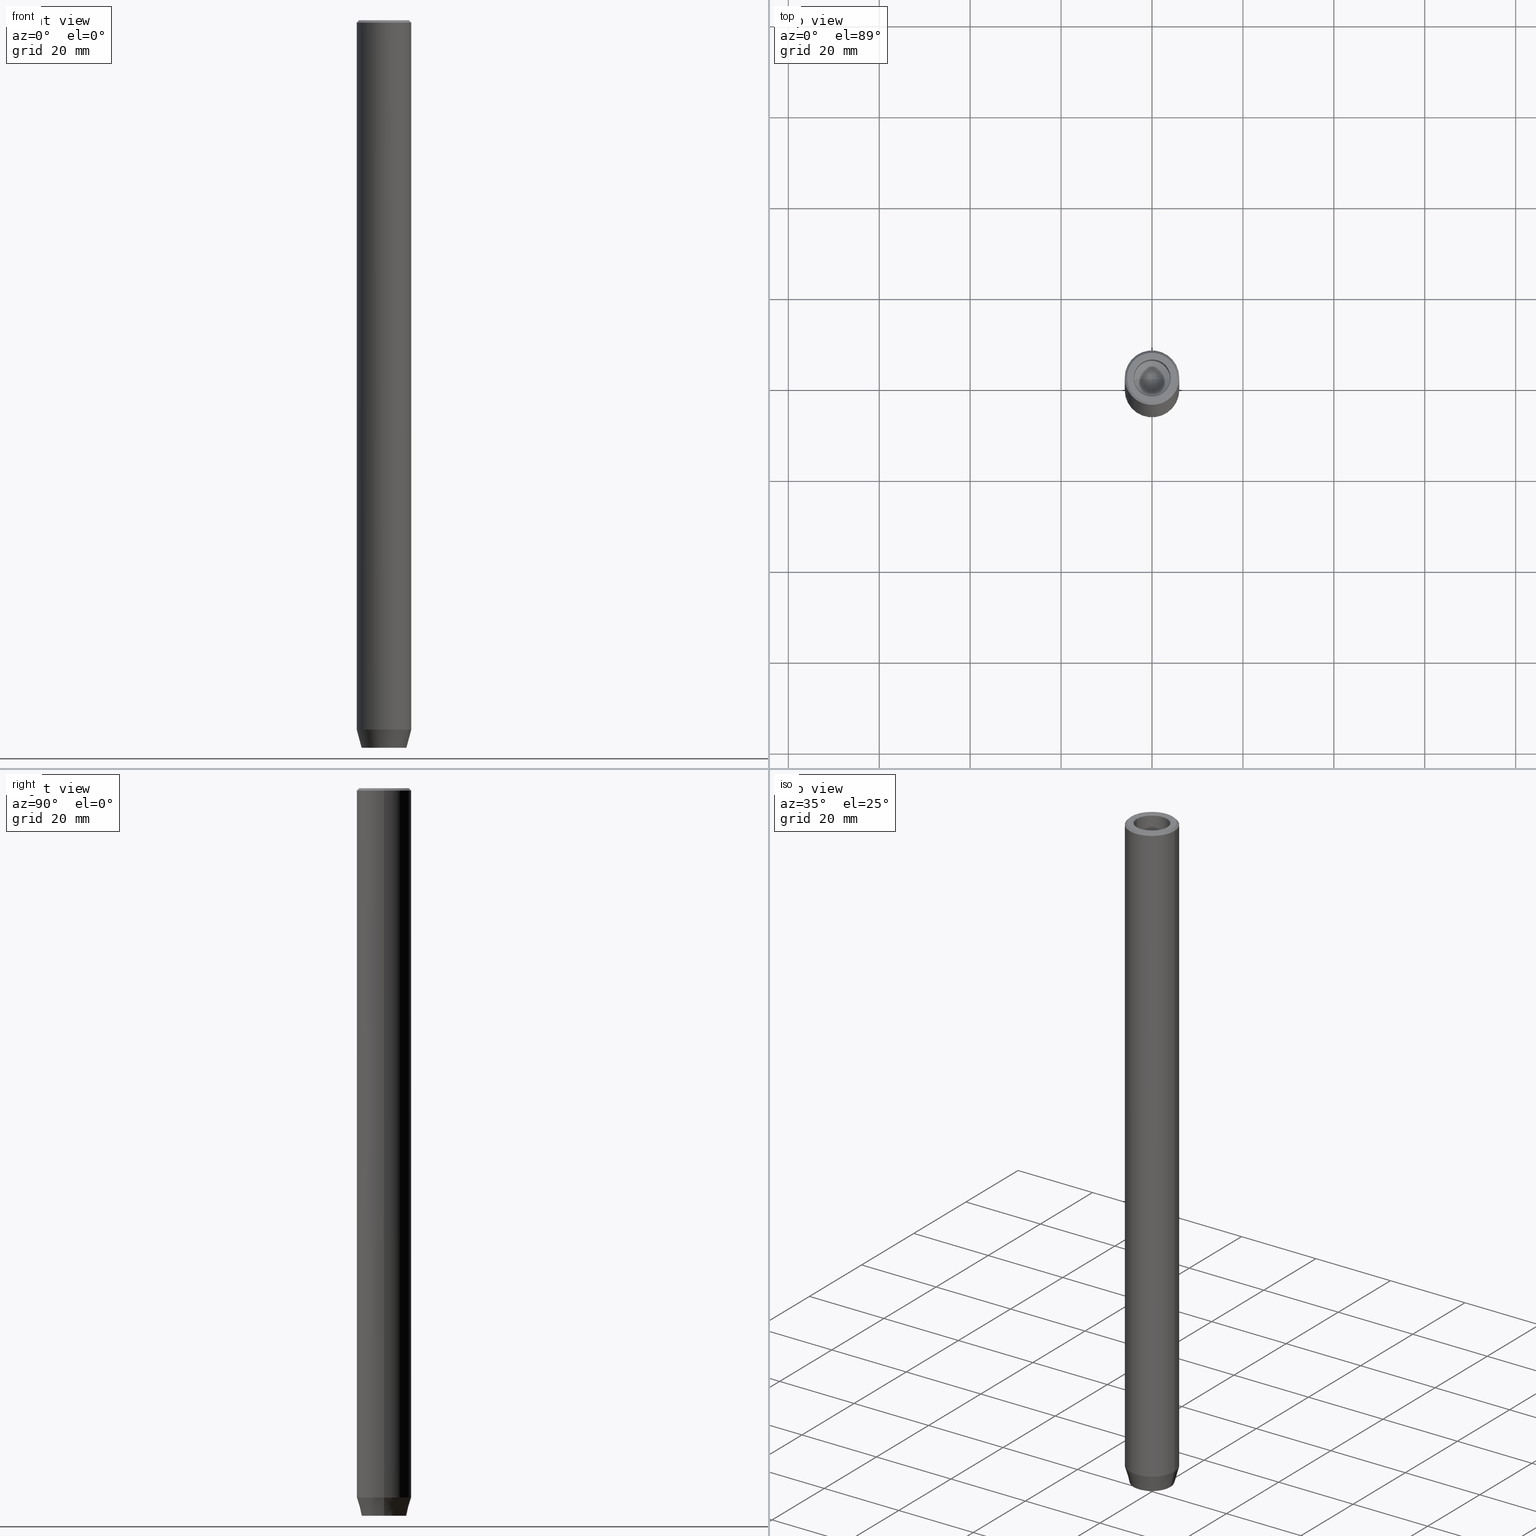
[diagram: canonical four-view strip — front | top / right | iso, engineering-drawing reading convention]
A machine part, canonical four-view strip (front | top / right | iso — engineering-drawing reading convention). The complete STEP part file that produces these views, byte-faithful:
ISO-10303-21;
HEADER;
FILE_DESCRIPTION (( 'STEP AP203' ),
    '1' );
FILE_NAME ('9457.STEP',
    '2024-01-02T19:11:18',
    ( '' ),
    ( '' ),
    'SwSTEP 2.0',
    'SolidWorks 2019',
    '' );
FILE_SCHEMA (( 'CONFIG_CONTROL_DESIGN' ));
ENDSEC;

DATA;
#1 = ORIENTED_EDGE ( 'NONE', *, *, #570, .T. ) ;
#2 = EDGE_CURVE ( 'NONE', #426, #638, #196, .T. ) ;
#3 = DIRECTION ( 'NONE',  ( -0.000000000000000000, -0.000000000000000000, 1.000000000000000000 ) ) ;
#4 = LINE ( 'NONE', #199, #403 ) ;
#5 = VECTOR ( 'NONE', #436, 1000.000000000000000 ) ;
#6 = DIRECTION ( 'NONE',  ( 0.8660254037844385966, 0.4999999999999998890, 0.000000000000000000 ) ) ;
#7 = CARTESIAN_POINT ( 'NONE',  ( 0.000000000000000000, 0.000000000000000000, -0.2999999999999999889 ) ) ;
#8 = EDGE_CURVE ( 'NONE', #488, #52, #585, .T. ) ;
#9 = DIRECTION ( 'NONE',  ( -0.000000000000000000, -0.000000000000000000, 1.000000000000000000 ) ) ;
#10 = CYLINDRICAL_SURFACE ( 'NONE', #380, 3.999999999999996447 ) ;
#11 = DIRECTION ( 'NONE',  ( -1.000000000000000000, 0.000000000000000000, -0.000000000000000000 ) ) ;
#12 = CIRCLE ( 'NONE', #235, 3.999999999999996447 ) ;
#13 = CIRCLE ( 'NONE', #596, 6.000000000000000000 ) ;
#14 = DIRECTION ( 'NONE',  ( 0.000000000000000000, -1.000000000000000000, 0.000000000000000000 ) ) ;
#15 = APPROVAL_STATUS ( 'not_yet_approved' ) ;
#16 = CARTESIAN_POINT ( 'NONE',  ( 1.249999999999999778, -2.165063509461096380, -160.0000000000000284 ) ) ;
#17 = ORIENTED_EDGE ( 'NONE', *, *, #174, .F. ) ;
#18 = ADVANCED_FACE ( 'NONE', ( #140 ), #588, .T. ) ;
#19 = PERSON_AND_ORGANIZATION ( #432, #216 ) ;
#20 = DIRECTION ( 'NONE',  ( 1.000000000000000000, 0.000000000000000000, 0.000000000000000000 ) ) ;
#21 = VERTEX_POINT ( 'NONE', #237 ) ;
#22 = PRODUCT_RELATED_PRODUCT_CATEGORY ( 'detail', '', ( #84 ) ) ;
#23 = DIRECTION ( 'NONE',  ( 1.000000000000000000, 0.000000000000000000, 0.000000000000000000 ) ) ;
#24 = DIRECTION ( 'NONE',  ( -0.8660254037844385966, -0.4999999999999999445, 0.000000000000000000 ) ) ;
#25 = AXIS2_PLACEMENT_3D ( 'NONE', #57, #105, #459 ) ;
#26 = VERTEX_POINT ( 'NONE', #276 ) ;
#27 = PERSON_AND_ORGANIZATION_ROLE ( 'design_owner' ) ;
#28 = ADVANCED_FACE ( 'NONE', ( #482 ), #130, .T. ) ;
#29 = LINE ( 'NONE', #221, #159 ) ;
#30 = EDGE_LOOP ( 'NONE', ( #166, #340, #333 ) ) ;
#31 = DIRECTION ( 'NONE',  ( 0.5000000000000001110, -0.8660254037844387076, 0.000000000000000000 ) ) ;
#32 = CC_DESIGN_PERSON_AND_ORGANIZATION_ASSIGNMENT ( #83, #27, ( #84 ) ) ;
#33 = EDGE_LOOP ( 'NONE', ( #186, #331, #387, #142 ) ) ;
#34 = VECTOR ( 'NONE', #93, 1000.000000000000000 ) ;
#35 = DIRECTION ( 'NONE',  ( 1.000000000000000000, 0.000000000000000000, 0.000000000000000000 ) ) ;
#36 = CIRCLE ( 'NONE', #357, 5.500000000000017764 ) ;
#37 = EDGE_LOOP ( 'NONE', ( #336, #136, #342, #81 ) ) ;
#38 = CIRCLE ( 'NONE', #438, 4.928203230275505220 ) ;
#39 = VECTOR ( 'NONE', #233, 1000.000000000000000 ) ;
#40 = LINE ( 'NONE', #582, #280 ) ;
#41 = ORIENTED_EDGE ( 'NONE', *, *, #125, .F. ) ;
#42 = ADVANCED_FACE ( 'NONE', ( #61 ), #100, .T. ) ;
#43 = DIRECTION ( 'NONE',  ( -0.000000000000000000, -0.000000000000000000, 1.000000000000000000 ) ) ;
#44 = EDGE_LOOP ( 'NONE', ( #322, #179, #289, #178 ) ) ;
#45 = LINE ( 'NONE', #391, #153 ) ;
#46 = ORIENTED_EDGE ( 'NONE', *, *, #184, .T. ) ;
#47 = CLOSED_SHELL ( 'NONE', ( #70, #292, #190, #18, #42, #407, #552, #138, #622, #303, #28, #201, #605, #82, #250, #225, #91, #243, #385, #633, #76 ) ) ;
#48 = AXIS2_PLACEMENT_3D ( 'NONE', #586, #388, #144 ) ;
#49 = DIRECTION ( 'NONE',  ( -0.000000000000000000, -0.000000000000000000, -1.000000000000000000 ) ) ;
#50 = EDGE_CURVE ( 'NONE', #521, #271, #38, .T. ) ;
#51 = ORIENTED_EDGE ( 'NONE', *, *, #50, .T. ) ;
#52 = VERTEX_POINT ( 'NONE', #607 ) ;
#53 = CARTESIAN_POINT ( 'NONE',  ( -1.250000000000000000, 2.165063509461097269, -154.2000000000000455 ) ) ;
#54 = ORIENTED_EDGE ( 'NONE', *, *, #503, .T. ) ;
#55 = LINE ( 'NONE', #358, #369 ) ;
#56 = DIRECTION ( 'NONE',  ( 1.000000000000000000, 0.000000000000000000, 0.000000000000000000 ) ) ;
#57 = CARTESIAN_POINT ( 'NONE',  ( 0.000000000000000000, 0.000000000000000000, -160.0000000000000000 ) ) ;
#58 = DIRECTION ( 'NONE',  ( 0.000000000000000000, -1.000000000000000000, 0.000000000000000000 ) ) ;
#59 = EDGE_CURVE ( 'NONE', #271, #521, #463, .T. ) ;
#60 = CYLINDRICAL_SURFACE ( 'NONE', #180, 6.000000000000000000 ) ;
#61 = FACE_OUTER_BOUND ( 'NONE', #145, .T. ) ;
#62 = FACE_OUTER_BOUND ( 'NONE', #86, .T. ) ;
#63 = DIRECTION ( 'NONE',  ( 1.224646799147353207E-16, 1.000000000000000000, 0.000000000000000000 ) ) ;
#64 = VECTOR ( 'NONE', #241, 1000.000000000000000 ) ;
#65 = LOCAL_TIME ( 20, 11, 18.00000000000000000, #470 ) ;
#66 = AXIS2_PLACEMENT_3D ( 'NONE', #608, #305, #11 ) ;
#67 = APPROVAL_DATE_TIME ( #163, #457 ) ;
#68 = CIRCLE ( 'NONE', #515, 6.000000000000000000 ) ;
#69 = CARTESIAN_POINT ( 'NONE',  ( 0.000000000000000000, 0.000000000000000000, -156.0000000000000000 ) ) ;
#70 = ADVANCED_FACE ( 'NONE', ( #245 ), #256, .T. ) ;
#71 = DATE_TIME_ROLE ( 'creation_date' ) ;
#72 = CARTESIAN_POINT ( 'NONE',  ( 4.299999999999996270, 0.000000000000000000, 0.000000000000000000 ) ) ;
#73 = EDGE_LOOP ( 'NONE', ( #75, #368, #449, #448 ) ) ;
#74 = CARTESIAN_POINT ( 'NONE',  ( 0.000000000000000000, 0.000000000000000000, -0.4999999999999891753 ) ) ;
#75 = ORIENTED_EDGE ( 'NONE', *, *, #2, .T. ) ;
#76 = ADVANCED_FACE ( 'NONE', ( #206 ), #161, .T. ) ;
#77 = DATE_AND_TIME ( #616, #255 ) ;
#78 = APPROVAL_PERSON_ORGANIZATION ( #265, #457, #519 ) ;
#79 = CARTESIAN_POINT ( 'NONE',  ( -2.500000000000000444, -1.443375672974064106, -154.2000000000000455 ) ) ;
#80 = AXIS2_PLACEMENT_3D ( 'NONE', #74, #85, #414 ) ;
#81 = ORIENTED_EDGE ( 'NONE', *, *, #454, .F. ) ;
#82 = ADVANCED_FACE ( 'NONE', ( #509 ), #428, .T. ) ;
#83 = PERSON_AND_ORGANIZATION ( #432, #216 ) ;
#84 = PRODUCT ( '9457', '9457', '', ( #514 ) ) ;
#85 = DIRECTION ( 'NONE',  ( 0.000000000000000000, 0.000000000000000000, -1.000000000000000000 ) ) ;
#86 = EDGE_LOOP ( 'NONE', ( #284, #54, #122, #46 ) ) ;
#87 = PLANE ( 'NONE',  #120 ) ;
#88 = ORIENTED_EDGE ( 'NONE', *, *, #208, .F. ) ;
#89 = CARTESIAN_POINT ( 'NONE',  ( 2.499999999999999556, 0.000000000000000000, -154.2000000000000455 ) ) ;
#90 = ORIENTED_EDGE ( 'NONE', *, *, #272, .F. ) ;
#91 = ADVANCED_FACE ( 'NONE', ( #550 ), #207, .F. ) ;
#92 = VECTOR ( 'NONE', #95, 1000.000000000000000 ) ;
#93 = DIRECTION ( 'NONE',  ( -0.000000000000000000, -0.000000000000000000, -1.000000000000000000 ) ) ;
#94 = VERTEX_POINT ( 'NONE', #410 ) ;
#95 = DIRECTION ( 'NONE',  ( -0.7071067811865426878, 0.000000000000000000, -0.7071067811865524577 ) ) ;
#96 = DIRECTION ( 'NONE',  ( -0.8660254037844387076, 0.4999999999999997780, 0.000000000000000000 ) ) ;
#97 = EDGE_CURVE ( 'NONE', #299, #494, #451, .T. ) ;
#98 = CARTESIAN_POINT ( 'NONE',  ( -6.000000000000000000, 7.347880794884119736E-16, -0.4999999999999891753 ) ) ;
#99 = ORIENTED_EDGE ( 'NONE', *, *, #2, .F. ) ;
#100 = CONICAL_SURFACE ( 'NONE', #109, 6.000000000000000000, 0.2617993877991501850 ) ;
#101 = CONICAL_SURFACE ( 'NONE', #453, 3.999999999999995559, 1.029744258676653645 ) ;
#102 = DIRECTION ( 'NONE',  ( -0.000000000000000000, -0.000000000000000000, 1.000000000000000000 ) ) ;
#103 = PLANE ( 'NONE',  #257 ) ;
#104 = CARTESIAN_POINT ( 'NONE',  ( 6.000000000000000000, 0.000000000000000000, -156.0000000000000000 ) ) ;
#105 = DIRECTION ( 'NONE',  ( -0.000000000000000000, -0.000000000000000000, 1.000000000000000000 ) ) ;
#106 = CARTESIAN_POINT ( 'NONE',  ( 0.000000000000000000, 0.000000000000000000, 0.000000000000000000 ) ) ;
#107 = EDGE_CURVE ( 'NONE', #494, #194, #537, .T. ) ;
#108 = ORIENTED_EDGE ( 'NONE', *, *, #591, .F. ) ;
#109 = AXIS2_PLACEMENT_3D ( 'NONE', #352, #560, #113 ) ;
#110 = CARTESIAN_POINT ( 'NONE',  ( 0.000000000000000000, 0.000000000000000000, -0.2999999999999999889 ) ) ;
#111 = CARTESIAN_POINT ( 'NONE',  ( 0.000000000000000000, 0.000000000000000000, -0.2999999999999999889 ) ) ;
#112 = DIRECTION ( 'NONE',  ( 1.000000000000000000, 0.000000000000000000, 0.000000000000000000 ) ) ;
#113 = DIRECTION ( 'NONE',  ( 1.000000000000000000, 0.000000000000000000, 0.000000000000000000 ) ) ;
#114 = EDGE_CURVE ( 'NONE', #222, #389, #553, .T. ) ;
#115 = APPLICATION_PROTOCOL_DEFINITION ( 'international standard', 'config_control_design', 1994, #577 ) ;
#116 = CARTESIAN_POINT ( 'NONE',  ( 0.000000000000000000, 2.886751345948129543, -154.2000000000000455 ) ) ;
#117 = VECTOR ( 'NONE', #239, 1000.000000000000000 ) ;
#118 = SECURITY_CLASSIFICATION ( '', '', #528 ) ;
#119 = APPROVAL_ROLE ( '' ) ;
#120 = AXIS2_PLACEMENT_3D ( 'NONE', #533, #542, #147 ) ;
#121 = CARTESIAN_POINT ( 'NONE',  ( -2.500000000000000000, 7.511572993685795156E-16, -154.2000000000000455 ) ) ;
#122 = ORIENTED_EDGE ( 'NONE', *, *, #464, .T. ) ;
#123 = FACE_OUTER_BOUND ( 'NONE', #30, .T. ) ;
#124 = ORIENTED_EDGE ( 'NONE', *, *, #217, .T. ) ;
#125 = EDGE_CURVE ( 'NONE', #299, #240, #192, .T. ) ;
#126 = LINE ( 'NONE', #16, #628 ) ;
#127 = ORIENTED_EDGE ( 'NONE', *, *, #412, .T. ) ;
#128 = DATE_AND_TIME ( #576, #311 ) ;
#129 = APPROVAL_PERSON_ORGANIZATION ( #261, #516, #119 ) ;
#130 = CONICAL_SURFACE ( 'NONE', #302, 5.500000000000017764, 0.7853981633974415066 ) ;
#131 = FACE_OUTER_BOUND ( 'NONE', #593, .T. ) ;
#132 = AXIS2_PLACEMENT_3D ( 'NONE', #317, #364, #562 ) ;
#133 = EDGE_LOOP ( 'NONE', ( #339, #497, #17, #88, #583, #99 ) ) ;
#134 = ADVANCED_BREP_SHAPE_REPRESENTATION ( '9457', ( #143, #625 ), #546 ) ;
#135 = LINE ( 'NONE', #335, #34 ) ;
#136 = ORIENTED_EDGE ( 'NONE', *, *, #97, .F. ) ;
#137 = ORIENTED_EDGE ( 'NONE', *, *, #285, .F. ) ;
#138 = ADVANCED_FACE ( 'NONE', ( #210, #355 ), #103, .T. ) ;
#139 = DIRECTION ( 'NONE',  ( -0.8571673007021118895, 1.049727191138618079E-16, 0.5150380749100549327 ) ) ;
#140 = FACE_OUTER_BOUND ( 'NONE', #375, .T. ) ;
#141 = LINE ( 'NONE', #189, #429 ) ;
#142 = ORIENTED_EDGE ( 'NONE', *, *, #591, .T. ) ;
#143 = MANIFOLD_SOLID_BREP ( 'Odebrat vysunut�m1', #47 ) ;
#144 = DIRECTION ( 'NONE',  ( 1.000000000000000000, 0.000000000000000000, 0.000000000000000000 ) ) ;
#145 = EDGE_LOOP ( 'NONE', ( #442, #472, #137, #595 ) ) ;
#146 = EDGE_CURVE ( 'NONE', #638, #267, #301, .T. ) ;
#147 = DIRECTION ( 'NONE',  ( -0.000000000000000000, 0.000000000000000000, -1.000000000000000000 ) ) ;
#148 = ORIENTED_EDGE ( 'NONE', *, *, #524, .T. ) ;
#149 =( LENGTH_UNIT ( ) NAMED_UNIT ( * ) SI_UNIT ( .MILLI., .METRE. ) );
#150 = VECTOR ( 'NONE', #549, 999.9999999999998863 ) ;
#151 = CARTESIAN_POINT ( 'NONE',  ( 0.000000000000000000, 0.000000000000000000, 0.000000000000000000 ) ) ;
#152 = AXIS2_PLACEMENT_3D ( 'NONE', #111, #254, #452 ) ;
#153 = VECTOR ( 'NONE', #332, 1000.000000000000227 ) ;
#154 = DIRECTION ( 'NONE',  ( -0.000000000000000000, -0.000000000000000000, 1.000000000000000000 ) ) ;
#155 = CARTESIAN_POINT ( 'NONE',  ( 2.499999999999999556, 0.000000000000000000, -160.0000000000000284 ) ) ;
#156 = EDGE_CURVE ( 'NONE', #421, #240, #55, .T. ) ;
#157 = DIRECTION ( 'NONE',  ( 0.000000000000000000, 0.000000000000000000, -1.000000000000000000 ) ) ;
#158 = DIRECTION ( 'NONE',  ( 1.000000000000000000, 0.000000000000000000, 0.000000000000000000 ) ) ;
#159 = VECTOR ( 'NONE', #578, 1000.000000000000000 ) ;
#160 =( NAMED_UNIT ( * ) PLANE_ANGLE_UNIT ( ) SI_UNIT ( $, .RADIAN. ) );
#161 = PLANE ( 'NONE',  #66 ) ;
#162 = EDGE_CURVE ( 'NONE', #212, #26, #4, .T. ) ;
#163 = DATE_AND_TIME ( #525, #278 ) ;
#164 = CALENDAR_DATE ( 2024, 2, 1 ) ;
#165 = DIRECTION ( 'NONE',  ( -0.5000000000000000000, 0.8660254037844387076, 0.000000000000000000 ) ) ;
#166 = ORIENTED_EDGE ( 'NONE', *, *, #324, .F. ) ;
#167 = AXIS2_PLACEMENT_3D ( 'NONE', #600, #402, #158 ) ;
#168 = APPROVAL_ROLE ( '' ) ;
#169 = AXIS2_PLACEMENT_3D ( 'NONE', #69, #624, #170 ) ;
#170 = DIRECTION ( 'NONE',  ( 1.000000000000000000, 0.000000000000000000, 0.000000000000000000 ) ) ;
#171 = ORIENTED_EDGE ( 'NONE', *, *, #570, .F. ) ;
#172 = CARTESIAN_POINT ( 'NONE',  ( 0.000000000000000000, 0.000000000000000000, 0.000000000000000000 ) ) ;
#173 = DIRECTION ( 'NONE',  ( 3.004629197474318063E-16, 1.000000000000000000, 0.000000000000000000 ) ) ;
#174 = EDGE_CURVE ( 'NONE', #21, #212, #502, .T. ) ;
#175 = VERTEX_POINT ( 'NONE', #557 ) ;
#176 = APPROVAL_STATUS ( 'not_yet_approved' ) ;
#177 = DIRECTION ( 'NONE',  ( -1.000000000000000000, 3.004629197474318063E-16, 0.000000000000000000 ) ) ;
#178 = ORIENTED_EDGE ( 'NONE', *, *, #314, .T. ) ;
#179 = ORIENTED_EDGE ( 'NONE', *, *, #433, .F. ) ;
#180 = AXIS2_PLACEMENT_3D ( 'NONE', #244, #253, #639 ) ;
#181 = LINE ( 'NONE', #275, #92 ) ;
#182 = AXIS2_PLACEMENT_3D ( 'NONE', #266, #262, #218 ) ;
#183 = ORIENTED_EDGE ( 'NONE', *, *, #264, .T. ) ;
#184 = EDGE_CURVE ( 'NONE', #566, #389, #209, .T. ) ;
#185 = CARTESIAN_POINT ( 'NONE',  ( 2.499999999999999556, 1.443375672974065216, -154.2000000000000455 ) ) ;
#186 = ORIENTED_EDGE ( 'NONE', *, *, #541, .F. ) ;
#187 = CYLINDRICAL_SURFACE ( 'NONE', #290, 6.000000000000000000 ) ;
#188 = EDGE_LOOP ( 'NONE', ( #390, #513, #274, #543 ) ) ;
#189 = CARTESIAN_POINT ( 'NONE',  ( -3.999999999999995559, 4.898587196589407898E-16, -17.00000000000000000 ) ) ;
#190 = ADVANCED_FACE ( 'NONE', ( #123 ), #101, .F. ) ;
#191 = CARTESIAN_POINT ( 'NONE',  ( -1.249999999999999334, -2.165063509461096825, -154.2000000000000455 ) ) ;
#192 = CIRCLE ( 'NONE', #598, 0.2999999999999999889 ) ;
#193 = FACE_OUTER_BOUND ( 'NONE', #379, .T. ) ;
#194 = VERTEX_POINT ( 'NONE', #568 ) ;
#195 = FACE_OUTER_BOUND ( 'NONE', #73, .T. ) ;
#196 = LINE ( 'NONE', #635, #334 ) ;
#197 = CARTESIAN_POINT ( 'NONE',  ( -4.827031923828040939E-15, 0.000000000000000000, -19.40344247611024286 ) ) ;
#198 = AXIS2_PLACEMENT_3D ( 'NONE', #423, #165, #24 ) ;
#199 = CARTESIAN_POINT ( 'NONE',  ( -2.500000000000000000, 7.511572993685795156E-16, -160.0000000000000284 ) ) ;
#200 = VECTOR ( 'NONE', #637, 1000.000000000000000 ) ;
#201 = ADVANCED_FACE ( 'NONE', ( #131 ), #636, .F. ) ;
#202 = CARTESIAN_POINT ( 'NONE',  ( 6.000000000000000000, 0.000000000000000000, -0.4999999999999891753 ) ) ;
#203 = CARTESIAN_POINT ( 'NONE',  ( -1.249999999999999334, -2.165063509461096825, -154.2000000000000455 ) ) ;
#204 = APPROVAL ( #15, 'NEUR�EN�' ) ;
#205 =( NAMED_UNIT ( * ) SI_UNIT ( $, .STERADIAN. ) SOLID_ANGLE_UNIT ( ) );
#206 = FACE_OUTER_BOUND ( 'NONE', #343, .T. ) ;
#207 = PLANE ( 'NONE',  #401 ) ;
#208 = EDGE_CURVE ( 'NONE', #267, #21, #126, .T. ) ;
#209 = CIRCLE ( 'NONE', #80, 6.000000000000000000 ) ;
#210 = FACE_BOUND ( 'NONE', #431, .T. ) ;
#211 = CARTESIAN_POINT ( 'NONE',  ( -2.500000000000000000, 7.511572993685795156E-16, -154.2000000000000455 ) ) ;
#212 = VERTEX_POINT ( 'NONE', #473 ) ;
#213 = PERSON_AND_ORGANIZATION_ROLE ( 'creator' ) ;
#214 = CARTESIAN_POINT ( 'NONE',  ( -6.000000000000000000, 7.347880794884119736E-16, -156.0000000000000000 ) ) ;
#215 = VERTEX_POINT ( 'NONE', #326 ) ;
#216 = ORGANIZATION ( 'NEUR�EN�', 'NEUR�EN�', '' ) ;
#217 = EDGE_CURVE ( 'NONE', #52, #215, #526, .T. ) ;
#218 = DIRECTION ( 'NONE',  ( 1.000000000000000000, 0.000000000000000000, 0.000000000000000000 ) ) ;
#219 = EDGE_LOOP ( 'NONE', ( #508, #590 ) ) ;
#220 = PERSON_AND_ORGANIZATION_ROLE ( 'design_supplier' ) ;
#221 = CARTESIAN_POINT ( 'NONE',  ( 5.500000000000017764, 6.735557395310464703E-16, 0.000000000000000000 ) ) ;
#222 = VERTEX_POINT ( 'NONE', #214 ) ;
#223 = FACE_OUTER_BOUND ( 'NONE', #572, .T. ) ;
#224 = EDGE_LOOP ( 'NONE', ( #579, #51, #260, #327 ) ) ;
#225 = ADVANCED_FACE ( 'NONE', ( #479 ), #564, .F. ) ;
#226 = CONICAL_SURFACE ( 'NONE', #182, 6.000000000000000000, 0.2617993877991501850 ) ;
#227 = AXIS2_PLACEMENT_3D ( 'NONE', #601, #594, #394 ) ;
#228 = CARTESIAN_POINT ( 'NONE',  ( 0.000000000000000000, 2.886751345948129543, -154.2000000000000455 ) ) ;
#229 = VECTOR ( 'NONE', #604, 1000.000000000000114 ) ;
#230 = CARTESIAN_POINT ( 'NONE',  ( 0.000000000000000000, 0.000000000000000000, 0.000000000000000000 ) ) ;
#231 = CARTESIAN_POINT ( 'NONE',  ( -6.000000000000000000, 7.347880794884119736E-16, -156.0000000000000000 ) ) ;
#232 = ORIENTED_EDGE ( 'NONE', *, *, #524, .F. ) ;
#233 = DIRECTION ( 'NONE',  ( -0.000000000000000000, -0.000000000000000000, -1.000000000000000000 ) ) ;
#234 = EDGE_LOOP ( 'NONE', ( #90, #437, #415, #587 ) ) ;
#235 = AXIS2_PLACEMENT_3D ( 'NONE', #110, #3, #56 ) ;
#236 = LINE ( 'NONE', #341, #200 ) ;
#237 = CARTESIAN_POINT ( 'NONE',  ( 6.505213034913026604E-16, -2.886751345948127767, -160.0000000000000284 ) ) ;
#238 = VECTOR ( 'NONE', #493, 1000.000000000000000 ) ;
#239 = DIRECTION ( 'NONE',  ( -0.2588190451025214611, 3.169619151431773569E-17, 0.9659258262890680902 ) ) ;
#240 = VERTEX_POINT ( 'NONE', #471 ) ;
#241 = DIRECTION ( 'NONE',  ( 0.2588190451025214611, 0.000000000000000000, 0.9659258262890680902 ) ) ;
#242 = CARTESIAN_POINT ( 'NONE',  ( -4.299999999999996270, 5.265981236333614526E-16, -0.2999999999999999889 ) ) ;
#243 = ADVANCED_FACE ( 'NONE', ( #574 ), #522, .F. ) ;
#244 = CARTESIAN_POINT ( 'NONE',  ( 0.000000000000000000, 0.000000000000000000, 0.000000000000000000 ) ) ;
#245 = FACE_OUTER_BOUND ( 'NONE', #321, .T. ) ;
#246 = CIRCLE ( 'NONE', #495, 3.999999999999996447 ) ;
#247 = CC_DESIGN_PERSON_AND_ORGANIZATION_ASSIGNMENT ( #19, #213, ( #346 ) ) ;
#248 = DIRECTION ( 'NONE',  ( 1.000000000000000000, 0.000000000000000000, 0.000000000000000000 ) ) ;
#249 = DIRECTION ( 'NONE',  ( -0.4999999999999998335, -0.8660254037844387076, 0.000000000000000000 ) ) ;
#250 = ADVANCED_FACE ( 'NONE', ( #223 ), #313, .F. ) ;
#251 = LINE ( 'NONE', #446, #150 ) ;
#252 = DIRECTION ( 'NONE',  ( -0.000000000000000000, -0.000000000000000000, 1.000000000000000000 ) ) ;
#253 = DIRECTION ( 'NONE',  ( -0.000000000000000000, -0.000000000000000000, 1.000000000000000000 ) ) ;
#254 = DIRECTION ( 'NONE',  ( -0.000000000000000000, -0.000000000000000000, 1.000000000000000000 ) ) ;
#255 = LOCAL_TIME ( 20, 11, 18.00000000000000000, #373 ) ;
#256 = TOROIDAL_SURFACE ( 'NONE', #627, 4.299999999999996270, 0.2999999999999999889 ) ;
#257 = AXIS2_PLACEMENT_3D ( 'NONE', #106, #456, #500 ) ;
#258 = PERSON_AND_ORGANIZATION ( #432, #216 ) ;
#259 = FACE_OUTER_BOUND ( 'NONE', #224, .T. ) ;
#260 = ORIENTED_EDGE ( 'NONE', *, *, #532, .T. ) ;
#261 = PERSON_AND_ORGANIZATION ( #432, #216 ) ;
#262 = DIRECTION ( 'NONE',  ( -0.000000000000000000, -0.000000000000000000, 1.000000000000000000 ) ) ;
#263 = ORIENTED_EDGE ( 'NONE', *, *, #324, .T. ) ;
#264 = EDGE_CURVE ( 'NONE', #297, #474, #420, .T. ) ;
#265 = PERSON_AND_ORGANIZATION ( #432, #216 ) ;
#266 = CARTESIAN_POINT ( 'NONE',  ( 0.000000000000000000, 0.000000000000000000, -156.0000000000000000 ) ) ;
#267 = VERTEX_POINT ( 'NONE', #518 ) ;
#268 = VECTOR ( 'NONE', #602, 1000.000000000000000 ) ;
#269 = DATE_AND_TIME ( #164, #65 ) ;
#270 = DIRECTION ( 'NONE',  ( -0.000000000000000000, -0.000000000000000000, -1.000000000000000000 ) ) ;
#271 = VERTEX_POINT ( 'NONE', #371 ) ;
#272 = EDGE_CURVE ( 'NONE', #94, #566, #29, .T. ) ;
#273 = CARTESIAN_POINT ( 'NONE',  ( 0.000000000000000000, 0.000000000000000000, -17.00000000000000000 ) ) ;
#274 = ORIENTED_EDGE ( 'NONE', *, *, #581, .T. ) ;
#275 = CARTESIAN_POINT ( 'NONE',  ( -5.500000000000017764, 0.000000000000000000, 0.000000000000000000 ) ) ;
#276 = CARTESIAN_POINT ( 'NONE',  ( -2.499999999999999556, 1.443375672974064994, -160.0000000000000284 ) ) ;
#277 = CC_DESIGN_APPROVAL ( #457, ( #561 ) ) ;
#278 = LOCAL_TIME ( 20, 11, 18.00000000000000000, #466 ) ;
#279 = LINE ( 'NONE', #228, #486 ) ;
#280 = VECTOR ( 'NONE', #43, 1000.000000000000000 ) ;
#281 = ORIENTED_EDGE ( 'NONE', *, *, #419, .F. ) ;
#282 = DIRECTION ( 'NONE',  ( -0.000000000000000000, -0.000000000000000000, 1.000000000000000000 ) ) ;
#283 = EDGE_LOOP ( 'NONE', ( #575, #384, #171, #127 ) ) ;
#284 = ORIENTED_EDGE ( 'NONE', *, *, #114, .F. ) ;
#285 = EDGE_CURVE ( 'NONE', #175, #222, #465, .T. ) ;
#286 = FACE_OUTER_BOUND ( 'NONE', #188, .T. ) ;
#287 = DIRECTION ( 'NONE',  ( -1.000000000000000000, 0.000000000000000000, 0.000000000000000000 ) ) ;
#288 = CARTESIAN_POINT ( 'NONE',  ( 0.000000000000000000, 2.886751345948129543, -160.0000000000000284 ) ) ;
#289 = ORIENTED_EDGE ( 'NONE', *, *, #217, .F. ) ;
#290 = AXIS2_PLACEMENT_3D ( 'NONE', #481, #282, #35 ) ;
#291 = CARTESIAN_POINT ( 'NONE',  ( -3.999999999999996447, 4.898587196589408884E-16, 0.000000000000000000 ) ) ;
#292 = ADVANCED_FACE ( 'NONE', ( #620 ), #520, .F. ) ;
#293 = DIRECTION ( 'NONE',  ( -1.000000000000000000, 0.000000000000000000, 0.000000000000000000 ) ) ;
#294 = ORIENTED_EDGE ( 'NONE', *, *, #344, .T. ) ;
#295 = CARTESIAN_POINT ( 'NONE',  ( 0.000000000000000000, 4.928203230275505220, -160.0000000000000284 ) ) ;
#296 = DIRECTION ( 'NONE',  ( 3.004629197474318063E-16, 1.000000000000000000, 0.000000000000000000 ) ) ;
#297 = VERTEX_POINT ( 'NONE', #116 ) ;
#298 = CARTESIAN_POINT ( 'NONE',  ( 0.000000000000000000, 0.000000000000000000, 0.000000000000000000 ) ) ;
#299 = VERTEX_POINT ( 'NONE', #72 ) ;
#300 = UNCERTAINTY_MEASURE_WITH_UNIT (LENGTH_MEASURE( 1.000000000000000082E-05 ), #149, 'distance_accuracy_value', 'NONE');
#301 = LINE ( 'NONE', #155, #312 ) ;
#302 = AXIS2_PLACEMENT_3D ( 'NONE', #230, #536, #293 ) ;
#303 = ADVANCED_FACE ( 'NONE', ( #259 ), #226, .T. ) ;
#304 = DIRECTION ( 'NONE',  ( -0.000000000000000000, -0.000000000000000000, 1.000000000000000000 ) ) ;
#305 = DIRECTION ( 'NONE',  ( 0.000000000000000000, 0.000000000000000000, -1.000000000000000000 ) ) ;
#306 = VERTEX_POINT ( 'NONE', #617 ) ;
#307 = CARTESIAN_POINT ( 'NONE',  ( 0.000000000000000000, 0.000000000000000000, -160.0000000000000000 ) ) ;
#308 = PERSON_AND_ORGANIZATION_ROLE ( 'creator' ) ;
#309 = CARTESIAN_POINT ( 'NONE',  ( 0.000000000000000000, 0.000000000000000000, -17.00000000000000000 ) ) ;
#310 = AXIS2_PLACEMENT_3D ( 'NONE', #121, #177, #610 ) ;
#311 = LOCAL_TIME ( 20, 11, 18.00000000000000000, #619 ) ;
#312 = VECTOR ( 'NONE', #58, 1000.000000000000000 ) ;
#313 = PLANE ( 'NONE',  #198 ) ;
#314 = EDGE_CURVE ( 'NONE', #52, #212, #374, .T. ) ;
#315 = EDGE_LOOP ( 'NONE', ( #444, #540, #424, #318 ) ) ;
#316 = APPLICATION_PROTOCOL_DEFINITION ( 'international standard', 'config_control_design', 1994, #328 ) ;
#317 = CARTESIAN_POINT ( 'NONE',  ( 0.000000000000000000, 0.000000000000000000, 0.000000000000000000 ) ) ;
#318 = ORIENTED_EDGE ( 'NONE', *, *, #156, .F. ) ;
#319 = COORDINATED_UNIVERSAL_TIME_OFFSET ( 1, 0, .AHEAD. ) ;
#320 = DIRECTION ( 'NONE',  ( -0.8660254037844387076, -0.5000000000000001110, 0.000000000000000000 ) ) ;
#321 = EDGE_LOOP ( 'NONE', ( #527, #630, #108, #41 ) ) ;
#322 = ORIENTED_EDGE ( 'NONE', *, *, #162, .T. ) ;
#323 = CC_DESIGN_SECURITY_CLASSIFICATION ( #118, ( #346 ) ) ;
#324 = EDGE_CURVE ( 'NONE', #569, #421, #477, .T. ) ;
#325 = VECTOR ( 'NONE', #49, 1000.000000000000000 ) ;
#326 = CARTESIAN_POINT ( 'NONE',  ( -2.499999999999999556, 1.443375672974064994, -154.2000000000000455 ) ) ;
#327 = ORIENTED_EDGE ( 'NONE', *, *, #503, .F. ) ;
#328 = APPLICATION_CONTEXT ( 'configuration controlled 3d designs of mechanical parts and assemblies' ) ;
#329 = CC_DESIGN_PERSON_AND_ORGANIZATION_ASSIGNMENT ( #476, #308, ( #561 ) ) ;
#330 = CARTESIAN_POINT ( 'NONE',  ( -5.500000000000017764, 0.000000000000000000, 0.000000000000000000 ) ) ;
#331 = ORIENTED_EDGE ( 'NONE', *, *, #612, .F. ) ;
#332 = DIRECTION ( 'NONE',  ( 0.8660254037844385966, 0.4999999999999998890, 0.000000000000000000 ) ) ;
#333 = ORIENTED_EDGE ( 'NONE', *, *, #365, .T. ) ;
#334 = VECTOR ( 'NONE', #395, 1000.000000000000114 ) ;
#335 = CARTESIAN_POINT ( 'NONE',  ( 2.499999999999999556, 1.443375672974065216, -154.2000000000000455 ) ) ;
#336 = ORIENTED_EDGE ( 'NONE', *, *, #107, .F. ) ;
#337 = EDGE_CURVE ( 'NONE', #474, #638, #135, .T. ) ;
#338 = CARTESIAN_POINT ( 'NONE',  ( 6.505213034913026604E-16, -2.886751345948127767, -154.2000000000000455 ) ) ;
#339 = ORIENTED_EDGE ( 'NONE', *, *, #344, .F. ) ;
#340 = ORIENTED_EDGE ( 'NONE', *, *, #510, .T. ) ;
#341 = CARTESIAN_POINT ( 'NONE',  ( 2.499999999999999556, -1.443375672974064550, -154.2000000000000455 ) ) ;
#342 = ORIENTED_EDGE ( 'NONE', *, *, #125, .T. ) ;
#343 = EDGE_LOOP ( 'NONE', ( #148, #183, #491, #1, #611, #124 ) ) ;
#344 = EDGE_CURVE ( 'NONE', #26, #426, #45, .T. ) ;
#345 = VECTOR ( 'NONE', #6, 1000.000000000000227 ) ;
#346 = PRODUCT_DEFINITION_FORMATION_WITH_SPECIFIED_SOURCE ( 'LIBOVOLN�', '', #84, .NOT_KNOWN. ) ;
#347 = LINE ( 'NONE', #53, #345 ) ;
#348 = VERTEX_POINT ( 'NONE', #330 ) ;
#349 = AXIS2_PLACEMENT_3D ( 'NONE', #298, #154, #409 ) ;
#350 = CC_DESIGN_DATE_AND_TIME_ASSIGNMENT ( #613, #366, ( #118 ) ) ;
#351 = CARTESIAN_POINT ( 'NONE',  ( 0.000000000000000000, 0.000000000000000000, 0.000000000000000000 ) ) ;
#352 = CARTESIAN_POINT ( 'NONE',  ( 0.000000000000000000, 0.000000000000000000, -156.0000000000000000 ) ) ;
#353 = ORIENTED_EDGE ( 'NONE', *, *, #393, .F. ) ;
#354 = DIRECTION ( 'NONE',  ( 0.000000000000000000, 0.000000000000000000, -1.000000000000000000 ) ) ;
#355 = FACE_OUTER_BOUND ( 'NONE', #219, .T. ) ;
#356 = LINE ( 'NONE', #291, #484 ) ;
#357 = AXIS2_PLACEMENT_3D ( 'NONE', #351, #554, #362 ) ;
#358 = CARTESIAN_POINT ( 'NONE',  ( 3.999999999999996447, 0.000000000000000000, 0.000000000000000000 ) ) ;
#359 = VECTOR ( 'NONE', #96, 1000.000000000000114 ) ;
#360 = VECTOR ( 'NONE', #173, 1000.000000000000000 ) ;
#361 = ORIENTED_EDGE ( 'NONE', *, *, #337, .T. ) ;
#362 = DIRECTION ( 'NONE',  ( 1.000000000000000000, 0.000000000000000000, 0.000000000000000000 ) ) ;
#363 = DIRECTION ( 'NONE',  ( -0.000000000000000000, -0.000000000000000000, 1.000000000000000000 ) ) ;
#364 = DIRECTION ( 'NONE',  ( -0.000000000000000000, -0.000000000000000000, 1.000000000000000000 ) ) ;
#365 = EDGE_CURVE ( 'NONE', #523, #421, #398, .T. ) ;
#366 = DATE_TIME_ROLE ( 'classification_date' ) ;
#367 = CARTESIAN_POINT ( 'NONE',  ( 1.249999999999999778, -2.165063509461096380, -154.2000000000000455 ) ) ;
#368 = ORIENTED_EDGE ( 'NONE', *, *, #337, .F. ) ;
#369 = VECTOR ( 'NONE', #9, 1000.000000000000000 ) ;
#370 = APPROVAL_DATE_TIME ( #128, #204 ) ;
#371 = CARTESIAN_POINT ( 'NONE',  ( 4.928203230275505220, 0.000000000000000000, -160.0000000000000000 ) ) ;
#372 = ORIENTED_EDGE ( 'NONE', *, *, #492, .T. ) ;
#373 = COORDINATED_UNIVERSAL_TIME_OFFSET ( 1, 0, .AHEAD. ) ;
#374 = LINE ( 'NONE', #79, #548 ) ;
#375 = EDGE_LOOP ( 'NONE', ( #499, #545, #418, #353 ) ) ;
#376 = EDGE_CURVE ( 'NONE', #488, #21, #539, .T. ) ;
#377 = CALENDAR_DATE ( 2024, 2, 1 ) ;
#378 = DIRECTION ( 'NONE',  ( 0.8660254037844385966, -0.4999999999999999445, 0.000000000000000000 ) ) ;
#379 = EDGE_LOOP ( 'NONE', ( #396, #626, #531, #361 ) ) ;
#380 = AXIS2_PLACEMENT_3D ( 'NONE', #498, #102, #112 ) ;
#381 = DIRECTION ( 'NONE',  ( 1.000000000000000000, 0.000000000000000000, 0.000000000000000000 ) ) ;
#382 = ORIENTED_EDGE ( 'NONE', *, *, #376, .T. ) ;
#383 = CARTESIAN_POINT ( 'NONE',  ( 0.000000000000000000, 0.000000000000000000, -156.0000000000000000 ) ) ;
#384 = ORIENTED_EDGE ( 'NONE', *, *, #376, .F. ) ;
#385 = ADVANCED_FACE ( 'NONE', ( #193 ), #87, .F. ) ;
#386 = LINE ( 'NONE', #89, #5 ) ;
#387 = ORIENTED_EDGE ( 'NONE', *, *, #156, .T. ) ;
#388 = DIRECTION ( 'NONE',  ( 0.000000000000000000, 0.000000000000000000, -1.000000000000000000 ) ) ;
#389 = VERTEX_POINT ( 'NONE', #98 ) ;
#390 = ORIENTED_EDGE ( 'NONE', *, *, #285, .T. ) ;
#391 = CARTESIAN_POINT ( 'NONE',  ( -1.250000000000000000, 2.165063509461097269, -160.0000000000000284 ) ) ;
#392 = ORIENTED_EDGE ( 'NONE', *, *, #510, .F. ) ;
#393 = EDGE_CURVE ( 'NONE', #348, #389, #181, .T. ) ;
#394 = DIRECTION ( 'NONE',  ( -0.8660254037844385966, 0.4999999999999998890, 0.000000000000000000 ) ) ;
#395 = DIRECTION ( 'NONE',  ( 0.8660254037844385966, -0.4999999999999999445, 0.000000000000000000 ) ) ;
#396 = ORIENTED_EDGE ( 'NONE', *, *, #146, .T. ) ;
#397 = CC_DESIGN_PERSON_AND_ORGANIZATION_ASSIGNMENT ( #413, #220, ( #346 ) ) ;
#398 = CIRCLE ( 'NONE', #439, 3.999999999999995559 ) ;
#399 = CC_DESIGN_APPROVAL ( #204, ( #118 ) ) ;
#400 = CARTESIAN_POINT ( 'NONE',  ( 0.000000000000000000, 0.000000000000000000, -0.4999999999999891753 ) ) ;
#401 = AXIS2_PLACEMENT_3D ( 'NONE', #203, #249, #405 ) ;
#402 = DIRECTION ( 'NONE',  ( 0.000000000000000000, 0.000000000000000000, -1.000000000000000000 ) ) ;
#403 = VECTOR ( 'NONE', #296, 1000.000000000000000 ) ;
#404 = PLANE ( 'NONE',  #227 ) ;
#405 = DIRECTION ( 'NONE',  ( 0.8660254037844387076, -0.4999999999999998335, 0.000000000000000000 ) ) ;
#406 = PLANE ( 'NONE',  #427 ) ;
#407 = ADVANCED_FACE ( 'NONE', ( #286 ), #187, .T. ) ;
#408 = CARTESIAN_POINT ( 'NONE',  ( -1.249999999999999334, -2.165063509461096825, -160.0000000000000284 ) ) ;
#409 = DIRECTION ( 'NONE',  ( 1.000000000000000000, 0.000000000000000000, 0.000000000000000000 ) ) ;
#410 = CARTESIAN_POINT ( 'NONE',  ( 5.500000000000017764, 7.041719095097292713E-16, 0.000000000000000000 ) ) ;
#411 = AXIS2_PLACEMENT_3D ( 'NONE', #273, #529, #467 ) ;
#412 = EDGE_CURVE ( 'NONE', #306, #267, #236, .T. ) ;
#413 = PERSON_AND_ORGANIZATION ( #432, #216 ) ;
#414 = DIRECTION ( 'NONE',  ( 1.000000000000000000, 0.000000000000000000, 0.000000000000000000 ) ) ;
#415 = ORIENTED_EDGE ( 'NONE', *, *, #393, .T. ) ;
#416 = PERSON_AND_ORGANIZATION_ROLE ( 'classification_officer' ) ;
#417 = DIRECTION ( 'NONE',  ( 0.8660254037844385966, 0.5000000000000000000, 0.000000000000000000 ) ) ;
#418 = ORIENTED_EDGE ( 'NONE', *, *, #581, .F. ) ;
#419 = EDGE_CURVE ( 'NONE', #297, #426, #279, .T. ) ;
#420 = LINE ( 'NONE', #614, #580 ) ;
#421 = VERTEX_POINT ( 'NONE', #440 ) ;
#422 = DIRECTION ( 'NONE',  ( 0.000000000000000000, 0.000000000000000000, 1.000000000000000000 ) ) ;
#423 = CARTESIAN_POINT ( 'NONE',  ( -1.250000000000000000, 2.165063509461097269, -154.2000000000000455 ) ) ;
#424 = ORIENTED_EDGE ( 'NONE', *, *, #454, .T. ) ;
#425 = DIRECTION ( 'NONE',  ( -0.000000000000000000, -0.000000000000000000, 1.000000000000000000 ) ) ;
#426 = VERTEX_POINT ( 'NONE', #288 ) ;
#427 = AXIS2_PLACEMENT_3D ( 'NONE', #295, #354, #501 ) ;
#428 = TOROIDAL_SURFACE ( 'NONE', #152, 4.299999999999996270, 0.2999999999999999889 ) ;
#429 = VECTOR ( 'NONE', #139, 1000.000000000000000 ) ;
#430 = CARTESIAN_POINT ( 'NONE',  ( -2.499999999999999556, 1.443375672974064994, -154.2000000000000455 ) ) ;
#431 = EDGE_LOOP ( 'NONE', ( #534, #372 ) ) ;
#432 = PERSON ( 'NEUR�EN�', 'NEUR�EN�', 'NEUR�EN�', ('NEUR�EN�'), ('NEUR�EN�'), ('NEUR�EN�') ) ;
#433 = EDGE_CURVE ( 'NONE', #215, #26, #496, .T. ) ;
#434 = CARTESIAN_POINT ( 'NONE',  ( 6.505213034913026604E-16, -2.886751345948127767, -154.2000000000000455 ) ) ;
#435 = EDGE_LOOP ( 'NONE', ( #480, #469 ) ) ;
#436 = DIRECTION ( 'NONE',  ( 0.000000000000000000, -1.000000000000000000, 0.000000000000000000 ) ) ;
#437 = ORIENTED_EDGE ( 'NONE', *, *, #597, .F. ) ;
#438 = AXIS2_PLACEMENT_3D ( 'NONE', #307, #363, #505 ) ;
#439 = AXIS2_PLACEMENT_3D ( 'NONE', #489, #535, #592 ) ;
#440 = CARTESIAN_POINT ( 'NONE',  ( 3.999999999999995559, 0.000000000000000000, -17.00000000000000000 ) ) ;
#441 = EDGE_CURVE ( 'NONE', #521, #222, #629, .T. ) ;
#442 = ORIENTED_EDGE ( 'NONE', *, *, #59, .T. ) ;
#443 = CARTESIAN_POINT ( 'NONE',  ( 0.000000000000000000, 0.000000000000000000, -0.2999999999999999889 ) ) ;
#444 = ORIENTED_EDGE ( 'NONE', *, *, #365, .F. ) ;
#445 = CC_DESIGN_DATE_AND_TIME_ASSIGNMENT ( #77, #71, ( #561 ) ) ;
#446 = CARTESIAN_POINT ( 'NONE',  ( 1.249999999999999778, -2.165063509461096380, -154.2000000000000455 ) ) ;
#447 = CARTESIAN_POINT ( 'NONE',  ( -6.000000000000000000, 7.347880794884119736E-16, 0.000000000000000000 ) ) ;
#448 = ORIENTED_EDGE ( 'NONE', *, *, #419, .T. ) ;
#449 = ORIENTED_EDGE ( 'NONE', *, *, #264, .F. ) ;
#450 = LINE ( 'NONE', #104, #64 ) ;
#451 = CIRCLE ( 'NONE', #167, 4.299999999999996270 ) ;
#452 = DIRECTION ( 'NONE',  ( 1.000000000000000000, 0.000000000000000000, 0.000000000000000000 ) ) ;
#453 = AXIS2_PLACEMENT_3D ( 'NONE', #309, #425, #20 ) ;
#454 = EDGE_CURVE ( 'NONE', #194, #240, #246, .T. ) ;
#455 = DIRECTION ( 'NONE',  ( -0.000000000000000000, -0.000000000000000000, 1.000000000000000000 ) ) ;
#456 = DIRECTION ( 'NONE',  ( 0.000000000000000000, -0.000000000000000000, 1.000000000000000000 ) ) ;
#457 = APPROVAL ( #176, 'NEUR�EN�' ) ;
#458 = CARTESIAN_POINT ( 'NONE',  ( -4.928203230275505220, 6.691594553194331608E-16, -160.0000000000000000 ) ) ;
#459 = DIRECTION ( 'NONE',  ( 1.000000000000000000, 0.000000000000000000, 0.000000000000000000 ) ) ;
#460 = PERSON_AND_ORGANIZATION ( #432, #216 ) ;
#461 = AXIS2_PLACEMENT_3D ( 'NONE', #551, #304, #507 ) ;
#462 = DIRECTION ( 'NONE',  ( -1.000000000000000000, 1.224646799147353207E-16, 0.000000000000000000 ) ) ;
#463 = CIRCLE ( 'NONE', #25, 4.928203230275505220 ) ;
#464 = EDGE_CURVE ( 'NONE', #175, #566, #40, .T. ) ;
#465 = CIRCLE ( 'NONE', #169, 6.000000000000000000 ) ;
#466 = COORDINATED_UNIVERSAL_TIME_OFFSET ( 1, 0, .AHEAD. ) ;
#467 = DIRECTION ( 'NONE',  ( 1.000000000000000000, 0.000000000000000000, 0.000000000000000000 ) ) ;
#468 = CC_DESIGN_PERSON_AND_ORGANIZATION_ASSIGNMENT ( #460, #416, ( #118 ) ) ;
#469 = ORIENTED_EDGE ( 'NONE', *, *, #50, .F. ) ;
#470 = COORDINATED_UNIVERSAL_TIME_OFFSET ( 1, 0, .AHEAD. ) ;
#471 = CARTESIAN_POINT ( 'NONE',  ( 3.999999999999996447, 0.000000000000000000, -0.2999999999999999889 ) ) ;
#472 = ORIENTED_EDGE ( 'NONE', *, *, #441, .T. ) ;
#473 = CARTESIAN_POINT ( 'NONE',  ( -2.500000000000000444, -1.443375672974064106, -160.0000000000000284 ) ) ;
#474 = VERTEX_POINT ( 'NONE', #185 ) ;
#475 = CIRCLE ( 'NONE', #349, 5.500000000000017764 ) ;
#476 = PERSON_AND_ORGANIZATION ( #432, #216 ) ;
#477 = LINE ( 'NONE', #544, #238 ) ;
#478 = ORIENTED_EDGE ( 'NONE', *, *, #8, .F. ) ;
#479 = FACE_OUTER_BOUND ( 'NONE', #44, .T. ) ;
#480 = ORIENTED_EDGE ( 'NONE', *, *, #59, .F. ) ;
#481 = CARTESIAN_POINT ( 'NONE',  ( 0.000000000000000000, 0.000000000000000000, 0.000000000000000000 ) ) ;
#482 = FACE_OUTER_BOUND ( 'NONE', #234, .T. ) ;
#483 = EDGE_CURVE ( 'NONE', #474, #306, #386, .T. ) ;
#484 = VECTOR ( 'NONE', #455, 1000.000000000000000 ) ;
#485 = APPROVAL_PERSON_ORGANIZATION ( #258, #204, #168 ) ;
#486 = VECTOR ( 'NONE', #487, 1000.000000000000000 ) ;
#487 = DIRECTION ( 'NONE',  ( -0.000000000000000000, -0.000000000000000000, -1.000000000000000000 ) ) ;
#488 = VERTEX_POINT ( 'NONE', #434 ) ;
#489 = CARTESIAN_POINT ( 'NONE',  ( 0.000000000000000000, 0.000000000000000000, -17.00000000000000000 ) ) ;
#490 = DESIGN_CONTEXT ( 'detailed design', #577, 'design' ) ;
#491 = ORIENTED_EDGE ( 'NONE', *, *, #483, .T. ) ;
#492 = EDGE_CURVE ( 'NONE', #494, #299, #623, .T. ) ;
#493 = DIRECTION ( 'NONE',  ( 0.8571673007021118895, 0.000000000000000000, 0.5150380749100549327 ) ) ;
#494 = VERTEX_POINT ( 'NONE', #631 ) ;
#495 = AXIS2_PLACEMENT_3D ( 'NONE', #443, #589, #381 ) ;
#496 = LINE ( 'NONE', #430, #325 ) ;
#497 = ORIENTED_EDGE ( 'NONE', *, *, #162, .F. ) ;
#498 = CARTESIAN_POINT ( 'NONE',  ( 0.000000000000000000, 0.000000000000000000, 0.000000000000000000 ) ) ;
#499 = ORIENTED_EDGE ( 'NONE', *, *, #558, .F. ) ;
#500 = DIRECTION ( 'NONE',  ( 1.000000000000000000, 0.000000000000000000, 0.000000000000000000 ) ) ;
#501 = DIRECTION ( 'NONE',  ( -1.000000000000000000, 0.000000000000000000, -0.000000000000000000 ) ) ;
#502 = LINE ( 'NONE', #408, #229 ) ;
#503 = EDGE_CURVE ( 'NONE', #222, #175, #13, .T. ) ;
#504 = CARTESIAN_POINT ( 'NONE',  ( 2.499999999999999556, 1.443375672974065216, -160.0000000000000284 ) ) ;
#505 = DIRECTION ( 'NONE',  ( 1.000000000000000000, 0.000000000000000000, 0.000000000000000000 ) ) ;
#506 = ORIENTED_EDGE ( 'NONE', *, *, #433, .T. ) ;
#507 = DIRECTION ( 'NONE',  ( 1.000000000000000000, 0.000000000000000000, 0.000000000000000000 ) ) ;
#508 = ORIENTED_EDGE ( 'NONE', *, *, #597, .T. ) ;
#509 = FACE_OUTER_BOUND ( 'NONE', #37, .T. ) ;
#510 = EDGE_CURVE ( 'NONE', #569, #523, #141, .T. ) ;
#511 = FACE_OUTER_BOUND ( 'NONE', #435, .T. ) ;
#512 = DIRECTION ( 'NONE',  ( 1.000000000000000000, 0.000000000000000000, 0.000000000000000000 ) ) ;
#513 = ORIENTED_EDGE ( 'NONE', *, *, #114, .T. ) ;
#514 = MECHANICAL_CONTEXT ( 'NONE', #328, 'mechanical' ) ;
#515 = AXIS2_PLACEMENT_3D ( 'NONE', #400, #599, #248 ) ;
#516 = APPROVAL ( #573, 'NEUR�EN�' ) ;
#517 = CC_DESIGN_APPROVAL ( #516, ( #346 ) ) ;
#518 = CARTESIAN_POINT ( 'NONE',  ( 2.499999999999999556, -1.443375672974064550, -160.0000000000000284 ) ) ;
#519 = APPROVAL_ROLE ( '' ) ;
#520 = CYLINDRICAL_SURFACE ( 'NONE', #132, 3.999999999999996447 ) ;
#521 = VERTEX_POINT ( 'NONE', #458 ) ;
#522 = PLANE ( 'NONE',  #538 ) ;
#523 = VERTEX_POINT ( 'NONE', #603 ) ;
#524 = EDGE_CURVE ( 'NONE', #215, #297, #347, .T. ) ;
#525 = CALENDAR_DATE ( 2024, 2, 1 ) ;
#526 = LINE ( 'NONE', #211, #360 ) ;
#527 = ORIENTED_EDGE ( 'NONE', *, *, #492, .F. ) ;
#528 = SECURITY_CLASSIFICATION_LEVEL ( 'unclassified' ) ;
#529 = DIRECTION ( 'NONE',  ( -0.000000000000000000, -0.000000000000000000, 1.000000000000000000 ) ) ;
#530 = PRODUCT_DEFINITION_SHAPE ( 'NONE', 'NONE',  #561 ) ;
#531 = ORIENTED_EDGE ( 'NONE', *, *, #483, .F. ) ;
#532 = EDGE_CURVE ( 'NONE', #271, #175, #450, .T. ) ;
#533 = CARTESIAN_POINT ( 'NONE',  ( 2.499999999999999556, 0.000000000000000000, -154.2000000000000455 ) ) ;
#534 = ORIENTED_EDGE ( 'NONE', *, *, #97, .T. ) ;
#535 = DIRECTION ( 'NONE',  ( -0.000000000000000000, -0.000000000000000000, 1.000000000000000000 ) ) ;
#536 = DIRECTION ( 'NONE',  ( 0.000000000000000000, 0.000000000000000000, -1.000000000000000000 ) ) ;
#537 = CIRCLE ( 'NONE', #565, 0.2999999999999999334 ) ;
#538 = AXIS2_PLACEMENT_3D ( 'NONE', #367, #31, #417 ) ;
#539 = LINE ( 'NONE', #338, #39 ) ;
#540 = ORIENTED_EDGE ( 'NONE', *, *, #541, .T. ) ;
#541 = EDGE_CURVE ( 'NONE', #523, #194, #356, .T. ) ;
#542 = DIRECTION ( 'NONE',  ( 1.000000000000000000, 0.000000000000000000, -0.000000000000000000 ) ) ;
#543 = ORIENTED_EDGE ( 'NONE', *, *, #464, .F. ) ;
#544 = CARTESIAN_POINT ( 'NONE',  ( 3.999999999999995559, 0.000000000000000000, -17.00000000000000000 ) ) ;
#545 = ORIENTED_EDGE ( 'NONE', *, *, #272, .T. ) ;
#546 =( GEOMETRIC_REPRESENTATION_CONTEXT ( 3 ) GLOBAL_UNCERTAINTY_ASSIGNED_CONTEXT ( ( #300 ) ) GLOBAL_UNIT_ASSIGNED_CONTEXT ( ( #149, #160, #205 ) ) REPRESENTATION_CONTEXT ( 'NONE', 'WORKASPACE' ) );
#547 = AXIS2_PLACEMENT_3D ( 'NONE', #151, #632, #287 ) ;
#548 = VECTOR ( 'NONE', #270, 1000.000000000000000 ) ;
#549 = DIRECTION ( 'NONE',  ( -0.8660254037844387076, -0.5000000000000001110, 0.000000000000000000 ) ) ;
#550 = FACE_OUTER_BOUND ( 'NONE', #615, .T. ) ;
#551 = CARTESIAN_POINT ( 'NONE',  ( 0.000000000000000000, 0.000000000000000000, -17.00000000000000000 ) ) ;
#552 = ADVANCED_FACE ( 'NONE', ( #556, #511 ), #406, .T. ) ;
#553 = LINE ( 'NONE', #447, #268 ) ;
#554 = DIRECTION ( 'NONE',  ( -0.000000000000000000, -0.000000000000000000, 1.000000000000000000 ) ) ;
#555 = CARTESIAN_POINT ( 'NONE',  ( 4.299999999999996270, 0.000000000000000000, -0.2999999999999999889 ) ) ;
#556 = FACE_BOUND ( 'NONE', #133, .T. ) ;
#557 = CARTESIAN_POINT ( 'NONE',  ( 6.000000000000000000, 0.000000000000000000, -156.0000000000000000 ) ) ;
#558 = EDGE_CURVE ( 'NONE', #94, #348, #475, .T. ) ;
#559 = FACE_OUTER_BOUND ( 'NONE', #33, .T. ) ;
#560 = DIRECTION ( 'NONE',  ( -0.000000000000000000, -0.000000000000000000, 1.000000000000000000 ) ) ;
#561 = PRODUCT_DEFINITION ( 'NEZN�M�', '', #346, #490 ) ;
#562 = DIRECTION ( 'NONE',  ( 1.000000000000000000, 0.000000000000000000, 0.000000000000000000 ) ) ;
#563 = LOCAL_TIME ( 20, 11, 18.00000000000000000, #319 ) ;
#564 = PLANE ( 'NONE',  #310 ) ;
#565 = AXIS2_PLACEMENT_3D ( 'NONE', #242, #63, #462 ) ;
#566 = VERTEX_POINT ( 'NONE', #202 ) ;
#567 = SHAPE_DEFINITION_REPRESENTATION ( #530, #134 ) ;
#568 = CARTESIAN_POINT ( 'NONE',  ( -3.999999999999996447, 4.898587196589408884E-16, -0.2999999999999999889 ) ) ;
#569 = VERTEX_POINT ( 'NONE', #197 ) ;
#570 = EDGE_CURVE ( 'NONE', #306, #488, #251, .T. ) ;
#571 = ORIENTED_EDGE ( 'NONE', *, *, #612, .T. ) ;
#572 = EDGE_LOOP ( 'NONE', ( #294, #281, #232, #506 ) ) ;
#573 = APPROVAL_STATUS ( 'not_yet_approved' ) ;
#574 = FACE_OUTER_BOUND ( 'NONE', #283, .T. ) ;
#575 = ORIENTED_EDGE ( 'NONE', *, *, #208, .T. ) ;
#576 = CALENDAR_DATE ( 2024, 2, 1 ) ;
#577 = APPLICATION_CONTEXT ( 'configuration controlled 3d designs of mechanical parts and assemblies' ) ;
#578 = DIRECTION ( 'NONE',  ( 0.7071067811865426878, 8.659560562354874926E-17, -0.7071067811865524577 ) ) ;
#579 = ORIENTED_EDGE ( 'NONE', *, *, #441, .F. ) ;
#580 = VECTOR ( 'NONE', #378, 1000.000000000000114 ) ;
#581 = EDGE_CURVE ( 'NONE', #389, #566, #68, .T. ) ;
#582 = CARTESIAN_POINT ( 'NONE',  ( 6.000000000000000000, 0.000000000000000000, 0.000000000000000000 ) ) ;
#583 = ORIENTED_EDGE ( 'NONE', *, *, #146, .F. ) ;
#584 = DIRECTION ( 'NONE',  ( -0.000000000000000000, -0.000000000000000000, 1.000000000000000000 ) ) ;
#585 = LINE ( 'NONE', #191, #359 ) ;
#586 = CARTESIAN_POINT ( 'NONE',  ( 0.000000000000000000, 0.000000000000000000, 0.000000000000000000 ) ) ;
#587 = ORIENTED_EDGE ( 'NONE', *, *, #184, .F. ) ;
#588 = CONICAL_SURFACE ( 'NONE', #547, 5.500000000000017764, 0.7853981633974415066 ) ;
#589 = DIRECTION ( 'NONE',  ( -0.000000000000000000, -0.000000000000000000, 1.000000000000000000 ) ) ;
#590 = ORIENTED_EDGE ( 'NONE', *, *, #558, .T. ) ;
#591 = EDGE_CURVE ( 'NONE', #240, #194, #12, .T. ) ;
#592 = DIRECTION ( 'NONE',  ( 1.000000000000000000, 0.000000000000000000, 0.000000000000000000 ) ) ;
#593 = EDGE_LOOP ( 'NONE', ( #392, #263, #571 ) ) ;
#594 = DIRECTION ( 'NONE',  ( 0.4999999999999999445, 0.8660254037844387076, -0.000000000000000000 ) ) ;
#595 = ORIENTED_EDGE ( 'NONE', *, *, #532, .F. ) ;
#596 = AXIS2_PLACEMENT_3D ( 'NONE', #383, #584, #634 ) ;
#597 = EDGE_CURVE ( 'NONE', #348, #94, #36, .T. ) ;
#598 = AXIS2_PLACEMENT_3D ( 'NONE', #555, #14, #157 ) ;
#599 = DIRECTION ( 'NONE',  ( 0.000000000000000000, 0.000000000000000000, -1.000000000000000000 ) ) ;
#600 = CARTESIAN_POINT ( 'NONE',  ( 0.000000000000000000, 0.000000000000000000, 0.000000000000000000 ) ) ;
#601 = CARTESIAN_POINT ( 'NONE',  ( 1.250000000000000222, 2.165063509461097269, -154.2000000000000455 ) ) ;
#602 = DIRECTION ( 'NONE',  ( -0.000000000000000000, -0.000000000000000000, 1.000000000000000000 ) ) ;
#603 = CARTESIAN_POINT ( 'NONE',  ( -3.999999999999995559, 4.898587196589407898E-16, -17.00000000000000000 ) ) ;
#604 = DIRECTION ( 'NONE',  ( -0.8660254037844387076, 0.4999999999999997780, 0.000000000000000000 ) ) ;
#605 = ADVANCED_FACE ( 'NONE', ( #559 ), #10, .F. ) ;
#606 = CIRCLE ( 'NONE', #461, 3.999999999999995559 ) ;
#607 = CARTESIAN_POINT ( 'NONE',  ( -2.500000000000000444, -1.443375672974064106, -154.2000000000000455 ) ) ;
#608 = CARTESIAN_POINT ( 'NONE',  ( 0.000000000000000000, 0.000000000000000000, -154.2000000000000455 ) ) ;
#609 = APPROVAL_DATE_TIME ( #269, #516 ) ;
#610 = DIRECTION ( 'NONE',  ( -3.004629197474318063E-16, -1.000000000000000000, 0.000000000000000000 ) ) ;
#611 = ORIENTED_EDGE ( 'NONE', *, *, #8, .T. ) ;
#612 = EDGE_CURVE ( 'NONE', #421, #523, #606, .T. ) ;
#613 = DATE_AND_TIME ( #377, #563 ) ;
#614 = CARTESIAN_POINT ( 'NONE',  ( 1.250000000000000222, 2.165063509461097269, -154.2000000000000455 ) ) ;
#615 = EDGE_LOOP ( 'NONE', ( #621, #618, #478, #382 ) ) ;
#616 = CALENDAR_DATE ( 2024, 2, 1 ) ;
#617 = CARTESIAN_POINT ( 'NONE',  ( 2.499999999999999556, -1.443375672974064550, -154.2000000000000455 ) ) ;
#618 = ORIENTED_EDGE ( 'NONE', *, *, #314, .F. ) ;
#619 = COORDINATED_UNIVERSAL_TIME_OFFSET ( 1, 0, .AHEAD. ) ;
#620 = FACE_OUTER_BOUND ( 'NONE', #315, .T. ) ;
#621 = ORIENTED_EDGE ( 'NONE', *, *, #174, .T. ) ;
#622 = ADVANCED_FACE ( 'NONE', ( #62 ), #60, .T. ) ;
#623 = CIRCLE ( 'NONE', #48, 4.299999999999996270 ) ;
#624 = DIRECTION ( 'NONE',  ( -0.000000000000000000, -0.000000000000000000, 1.000000000000000000 ) ) ;
#625 = AXIS2_PLACEMENT_3D ( 'NONE', #172, #422, #23 ) ;
#626 = ORIENTED_EDGE ( 'NONE', *, *, #412, .F. ) ;
#627 = AXIS2_PLACEMENT_3D ( 'NONE', #7, #252, #512 ) ;
#628 = VECTOR ( 'NONE', #320, 999.9999999999998863 ) ;
#629 = LINE ( 'NONE', #231, #117 ) ;
#630 = ORIENTED_EDGE ( 'NONE', *, *, #107, .T. ) ;
#631 = CARTESIAN_POINT ( 'NONE',  ( -4.299999999999996270, 5.265981236333614526E-16, 0.000000000000000000 ) ) ;
#632 = DIRECTION ( 'NONE',  ( 0.000000000000000000, 0.000000000000000000, -1.000000000000000000 ) ) ;
#633 = ADVANCED_FACE ( 'NONE', ( #195 ), #404, .F. ) ;
#634 = DIRECTION ( 'NONE',  ( 1.000000000000000000, 0.000000000000000000, 0.000000000000000000 ) ) ;
#635 = CARTESIAN_POINT ( 'NONE',  ( 1.250000000000000222, 2.165063509461097269, -160.0000000000000284 ) ) ;
#636 = CONICAL_SURFACE ( 'NONE', #411, 3.999999999999995559, 1.029744258676653645 ) ;
#637 = DIRECTION ( 'NONE',  ( -0.000000000000000000, -0.000000000000000000, -1.000000000000000000 ) ) ;
#638 = VERTEX_POINT ( 'NONE', #504 ) ;
#639 = DIRECTION ( 'NONE',  ( 1.000000000000000000, 0.000000000000000000, 0.000000000000000000 ) ) ;
ENDSEC;
END-ISO-10303-21;
